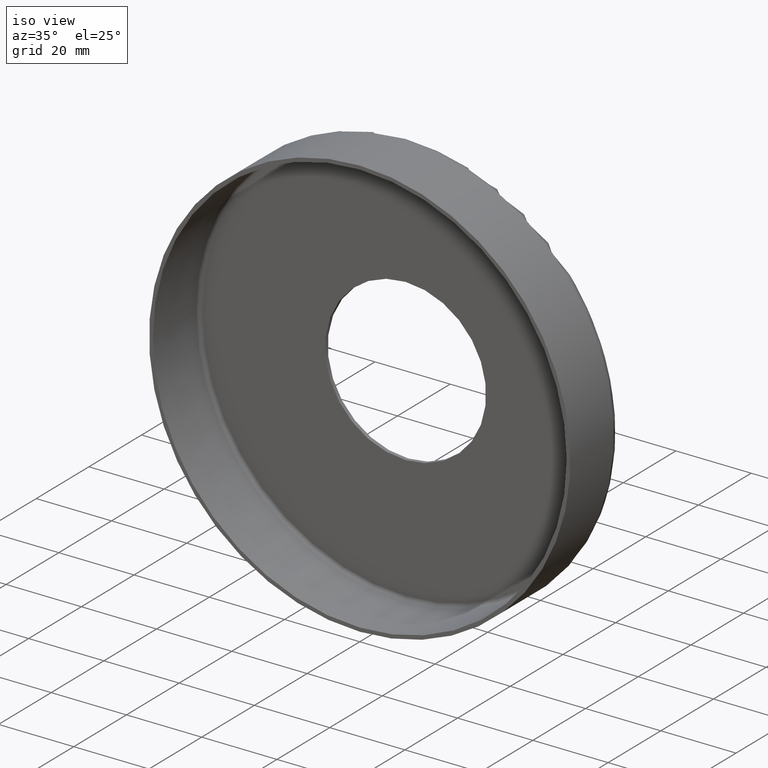
[diagram: clean part render]
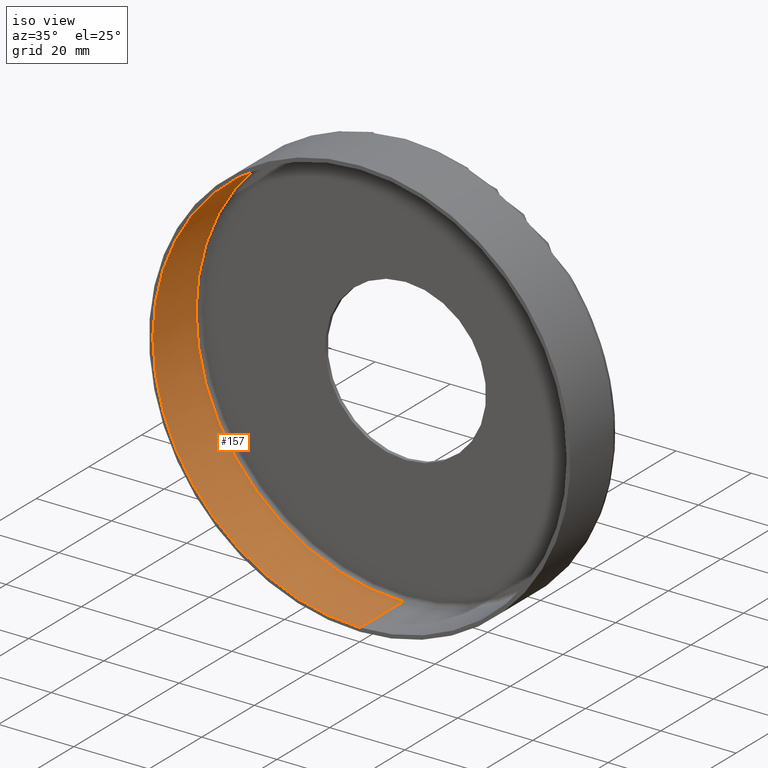
[diagram: same view with one face highlighted and labeled with its STEP entity id]
A machine part, iso view. The second image highlights one B-rep face of the part: STEP entity #157.
In plain terms, the highlighted cylindrical surface (partial cylindrical patch) has radius 55 mm, axis along (-0, -1, -0).
Its self-contained STEP definition (entity closure, byte-faithful):
#7 = ORIENTED_EDGE ( 'NONE', *, *, #364, .F. ) ;
#9 = DIRECTION ( 'NONE',  ( -0.0000000000000000000, -1.000000000000000000, -0.0000000000000000000 ) ) ;
#13 = VERTEX_POINT ( 'NONE', #335 ) ;
#27 = VERTEX_POINT ( 'NONE', #367 ) ;
#67 = EDGE_CURVE ( 'NONE', #27, #245, #247, .T. ) ;
#69 = CARTESIAN_POINT ( 'NONE',  ( 0.0000000000000000000, 18.39999999999999900, 0.0000000000000000000 ) ) ;
#73 = AXIS2_PLACEMENT_3D ( 'NONE', #395, #87, #362 ) ;
#74 = CARTESIAN_POINT ( 'NONE',  ( 6.735557395310444200E-015, 0.0000000000000000000, 55.00000000000000700 ) ) ;
#87 = DIRECTION ( 'NONE',  ( 0.0000000000000000000, 1.000000000000000000, 0.0000000000000000000 ) ) ;
#100 = EDGE_LOOP ( 'NONE', ( #7, #126, #120, #206 ) ) ;
#107 = VECTOR ( 'NONE', #188, 1000.000000000000000 ) ;
#120 = ORIENTED_EDGE ( 'NONE', *, *, #312, .F. ) ;
#126 = ORIENTED_EDGE ( 'NONE', *, *, #242, .T. ) ;
#139 = CARTESIAN_POINT ( 'NONE',  ( 6.735557395310444200E-015, 18.39999999999999900, 55.00000000000000700 ) ) ;
#143 = DIRECTION ( 'NONE',  ( 0.0000000000000000000, 0.0000000000000000000, -1.000000000000000000 ) ) ;
#145 = CARTESIAN_POINT ( 'NONE',  ( 0.0000000000000000000, 16.39999999999999900, 0.0000000000000000000 ) ) ;
#157 = ADVANCED_FACE ( 'NONE', ( #201 ), #205, .F. ) ;
#165 = DIRECTION ( 'NONE',  ( -0.0000000000000000000, -1.000000000000000000, -0.0000000000000000000 ) ) ;
#179 = VECTOR ( 'NONE', #165, 1000.000000000000000 ) ;
#188 = DIRECTION ( 'NONE',  ( -0.0000000000000000000, -1.000000000000000000, -0.0000000000000000000 ) ) ;
#201 = FACE_OUTER_BOUND ( 'NONE', #100, .T. ) ;
#205 = CYLINDRICAL_SURFACE ( 'NONE', #342, 55.00000000000000700 ) ;
#206 = ORIENTED_EDGE ( 'NONE', *, *, #67, .F. ) ;
#217 = DIRECTION ( 'NONE',  ( 0.0000000000000000000, 0.0000000000000000000, -1.000000000000000000 ) ) ;
#241 = VERTEX_POINT ( 'NONE', #74 ) ;
#242 = EDGE_CURVE ( 'NONE', #13, #241, #311, .T. ) ;
#245 = VERTEX_POINT ( 'NONE', #348 ) ;
#247 = LINE ( 'NONE', #315, #107 ) ;
#311 = LINE ( 'NONE', #139, #179 ) ;
#312 = EDGE_CURVE ( 'NONE', #245, #241, #327, .T. ) ;
#315 = CARTESIAN_POINT ( 'NONE',  ( 0.0000000000000000000, 18.39999999999999900, -55.00000000000000700 ) ) ;
#327 = CIRCLE ( 'NONE', #73, 55.00000000000000700 ) ;
#335 = CARTESIAN_POINT ( 'NONE',  ( 6.735557395310444200E-015, 16.39999999999999900, 55.00000000000000700 ) ) ;
#342 = AXIS2_PLACEMENT_3D ( 'NONE', #69, #9, #217 ) ;
#345 = AXIS2_PLACEMENT_3D ( 'NONE', #145, #363, #143 ) ;
#348 = CARTESIAN_POINT ( 'NONE',  ( 0.0000000000000000000, 0.0000000000000000000, -55.00000000000000700 ) ) ;
#362 = DIRECTION ( 'NONE',  ( 0.0000000000000000000, 0.0000000000000000000, 1.000000000000000000 ) ) ;
#363 = DIRECTION ( 'NONE',  ( -0.0000000000000000000, -1.000000000000000000, -0.0000000000000000000 ) ) ;
#364 = EDGE_CURVE ( 'NONE', #13, #27, #380, .T. ) ;
#367 = CARTESIAN_POINT ( 'NONE',  ( 0.0000000000000000000, 16.39999999999999900, -55.00000000000000700 ) ) ;
#380 = CIRCLE ( 'NONE', #345, 55.00000000000000700 ) ;
#395 = CARTESIAN_POINT ( 'NONE',  ( 0.0000000000000000000, 0.0000000000000000000, 0.0000000000000000000 ) ) ;